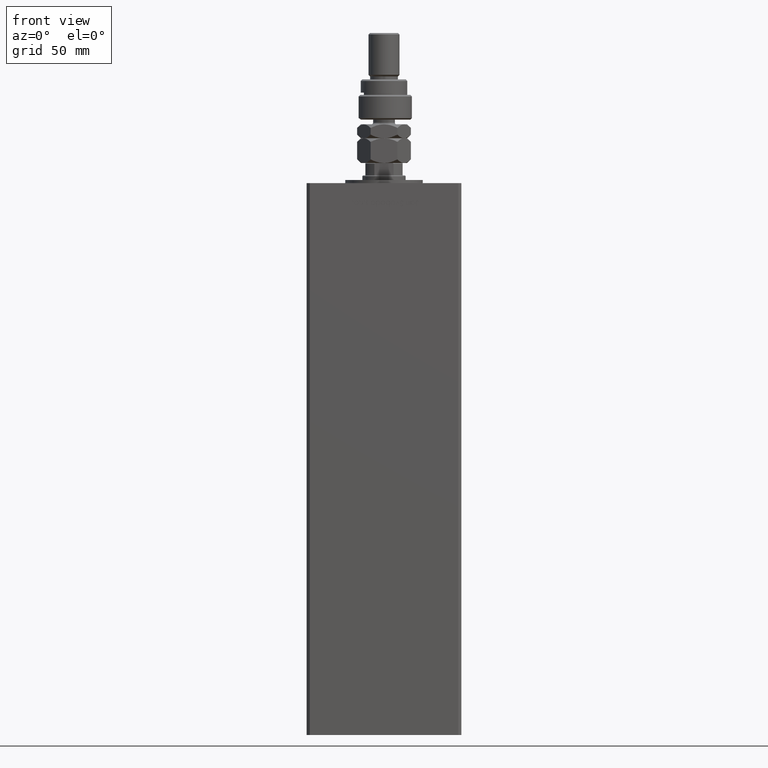
[diagram: clean part render]
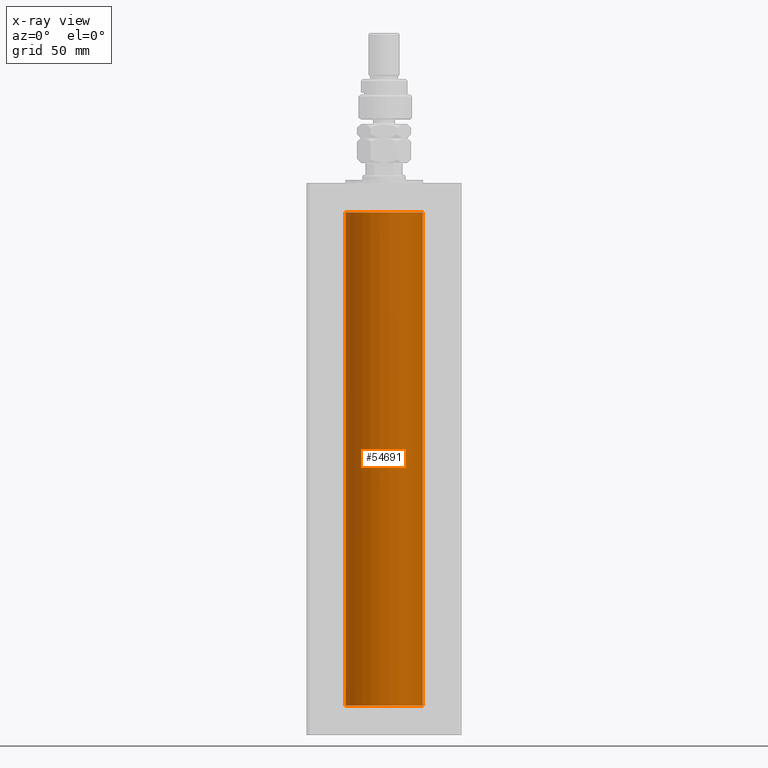
[diagram: x-ray — body ghosted, one internal face saturated and labeled with its STEP entity id]
A machine part, front view, then the same camera in x-ray: the body is ghosted and one INTERNAL B-rep face — a face not visible from any outside direction — is saturated and labeled: STEP entity #54691.
In plain terms, the highlighted cylindrical surface (partial cylindrical patch) has radius 25 mm, axis along (-0, -0, -1).
Its self-contained STEP definition (entity closure, byte-faithful):
#4668 = EDGE_CURVE ( 'NONE', #54315, #32530, #46364, .T. ) ;
#5694 = VERTEX_POINT ( 'NONE', #29422 ) ;
#8028 = AXIS2_PLACEMENT_3D ( 'NONE', #33073, #49763, #24146 ) ;
#8280 = FACE_OUTER_BOUND ( 'NONE', #27909, .T. ) ;
#9516 = EDGE_CURVE ( 'NONE', #54315, #5694, #11583, .T. ) ;
#11583 = LINE ( 'NONE', #40285, #20712 ) ;
#12598 = AXIS2_PLACEMENT_3D ( 'NONE', #20980, #54663, #16540 ) ;
#13008 = DIRECTION ( 'NONE',  ( -1.000000000000000000, 0.000000000000000000, 0.000000000000000000 ) ) ;
#14467 = CARTESIAN_POINT ( 'NONE',  ( -25.00000000000000000, 0.000000000000000000, 318.5000000000000000 ) ) ;
#16540 = DIRECTION ( 'NONE',  ( 1.000000000000000000, 0.000000000000000000, 0.000000000000000000 ) ) ;
#17099 = VECTOR ( 'NONE', #45631, 1000.000000000000000 ) ;
#17167 = CYLINDRICAL_SURFACE ( 'NONE', #22420, 25.00000000000000000 ) ;
#18409 = VERTEX_POINT ( 'NONE', #54045 ) ;
#18908 = ORIENTED_EDGE ( 'NONE', *, *, #25268, .F. ) ;
#20712 = VECTOR ( 'NONE', #27709, 1000.000000000000000 ) ;
#20980 = CARTESIAN_POINT ( 'NONE',  ( 0.000000000000000000, 0.000000000000000000, 318.5000000000000000 ) ) ;
#22420 = AXIS2_PLACEMENT_3D ( 'NONE', #26066, #29685, #13008 ) ;
#22859 = ORIENTED_EDGE ( 'NONE', *, *, #35225, .T. ) ;
#24146 = DIRECTION ( 'NONE',  ( 1.000000000000000000, 0.000000000000000000, 0.000000000000000000 ) ) ;
#25268 = EDGE_CURVE ( 'NONE', #5694, #18409, #32001, .T. ) ;
#26066 = CARTESIAN_POINT ( 'NONE',  ( 0.000000000000000000, 0.000000000000000000, 318.5000000000000000 ) ) ;
#27709 = DIRECTION ( 'NONE',  ( -0.000000000000000000, -0.000000000000000000, -1.000000000000000000 ) ) ;
#27909 = EDGE_LOOP ( 'NONE', ( #34307, #22859, #18908, #45971 ) ) ;
#29422 = CARTESIAN_POINT ( 'NONE',  ( -25.00000000000000000, 0.000000000000000000, 0.000000000000000000 ) ) ;
#29685 = DIRECTION ( 'NONE',  ( -0.000000000000000000, -0.000000000000000000, -1.000000000000000000 ) ) ;
#32001 = CIRCLE ( 'NONE', #8028, 25.00000000000000000 ) ;
#32530 = VERTEX_POINT ( 'NONE', #43768 ) ;
#33073 = CARTESIAN_POINT ( 'NONE',  ( 0.000000000000000000, 0.000000000000000000, 0.000000000000000000 ) ) ;
#34307 = ORIENTED_EDGE ( 'NONE', *, *, #4668, .T. ) ;
#35225 = EDGE_CURVE ( 'NONE', #32530, #18409, #45917, .T. ) ;
#40285 = CARTESIAN_POINT ( 'NONE',  ( -25.00000000000000000, 0.000000000000000000, 318.5000000000000000 ) ) ;
#43768 = CARTESIAN_POINT ( 'NONE',  ( 25.00000000000000000, 3.061616997868383043E-15, 318.5000000000000000 ) ) ;
#45631 = DIRECTION ( 'NONE',  ( -0.000000000000000000, -0.000000000000000000, -1.000000000000000000 ) ) ;
#45917 = LINE ( 'NONE', #54794, #17099 ) ;
#45971 = ORIENTED_EDGE ( 'NONE', *, *, #9516, .F. ) ;
#46364 = CIRCLE ( 'NONE', #12598, 25.00000000000000000 ) ;
#49763 = DIRECTION ( 'NONE',  ( -0.000000000000000000, 0.000000000000000000, 1.000000000000000000 ) ) ;
#54045 = CARTESIAN_POINT ( 'NONE',  ( 25.00000000000000000, 3.061616997868383043E-15, 0.000000000000000000 ) ) ;
#54315 = VERTEX_POINT ( 'NONE', #14467 ) ;
#54663 = DIRECTION ( 'NONE',  ( -0.000000000000000000, 0.000000000000000000, 1.000000000000000000 ) ) ;
#54691 = ADVANCED_FACE ( 'NONE', ( #8280 ), #17167, .F. ) ;
#54794 = CARTESIAN_POINT ( 'NONE',  ( 25.00000000000000000, 3.061616997868383043E-15, 318.5000000000000000 ) ) ;